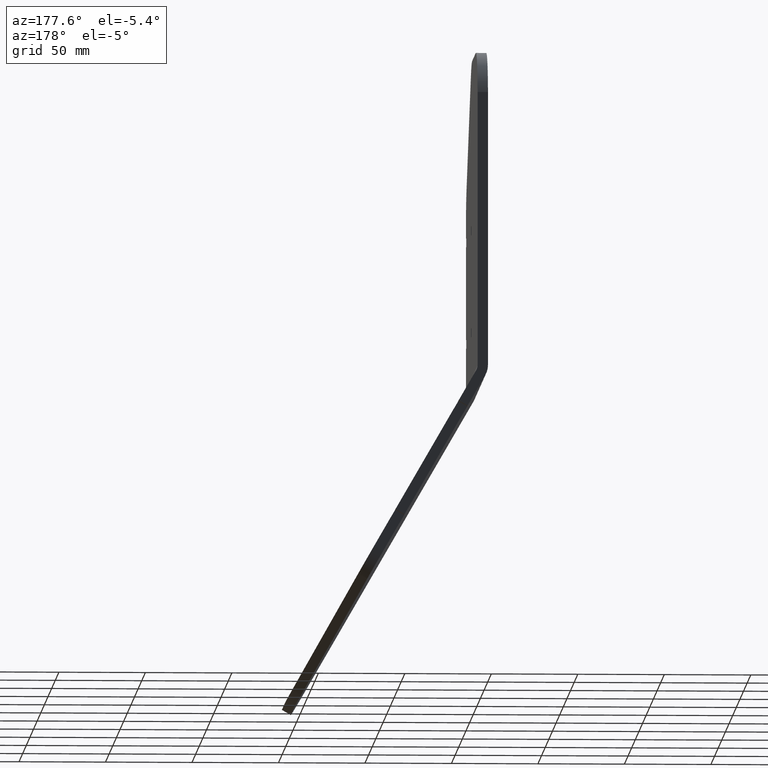
[diagram: clean part render]
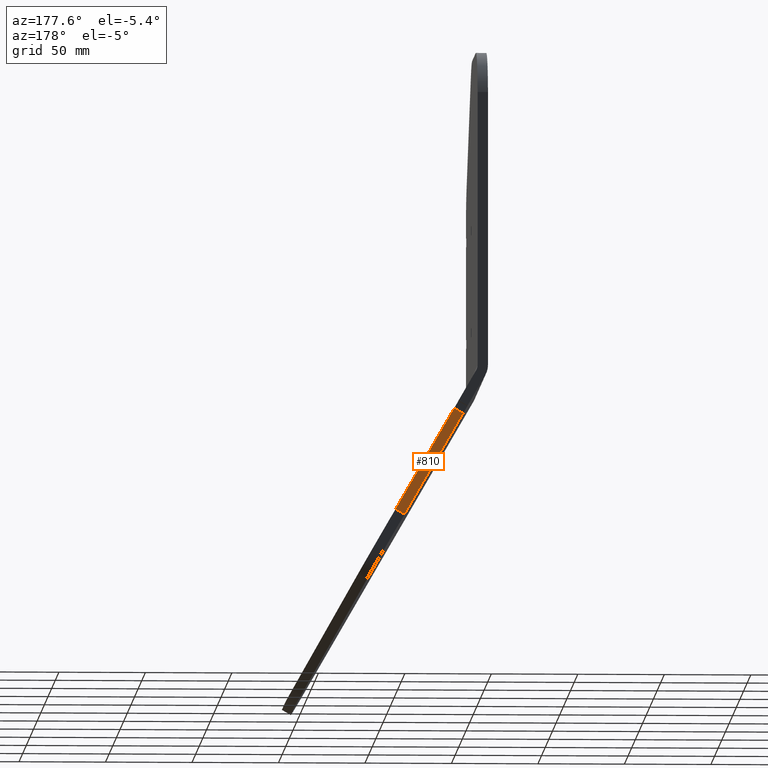
[diagram: same view with one face highlighted and labeled with its STEP entity id]
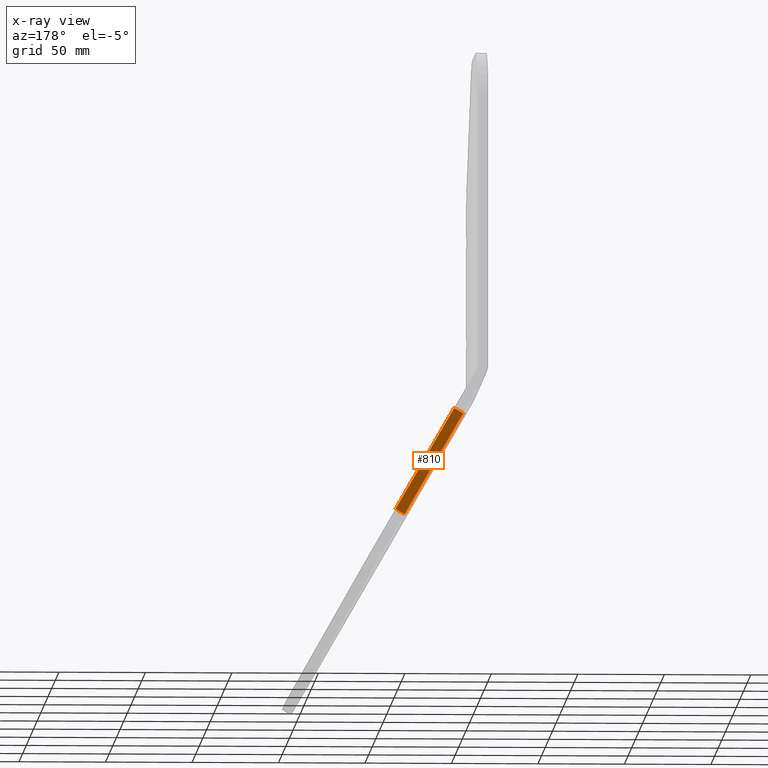
[diagram: x-ray of the same camera — body ghosted, the highlighted face saturated]
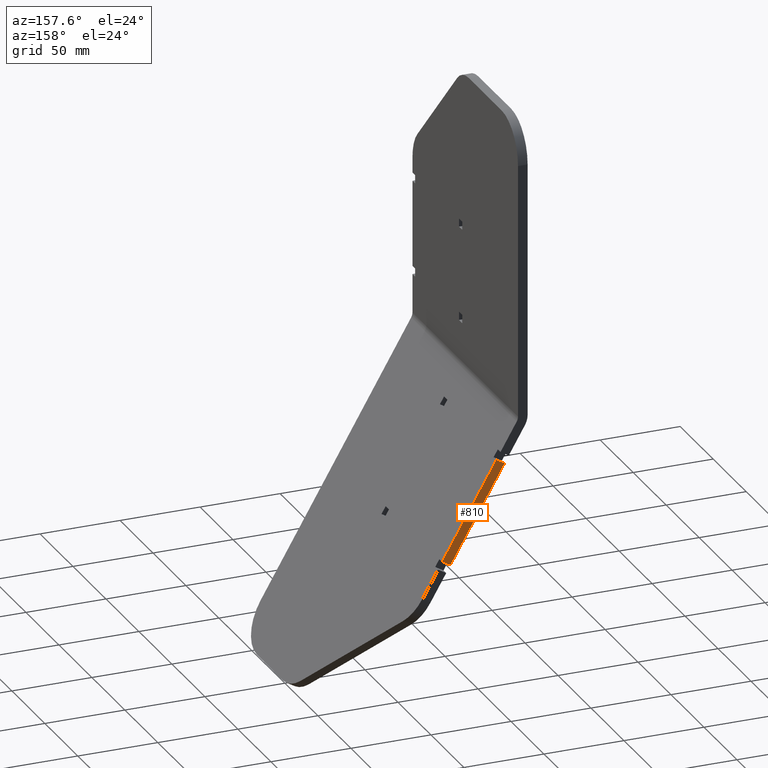
[diagram: same view with one face highlighted and labeled with its STEP entity id]
A machine part, auxiliary view. The second image highlights one B-rep face of the part: STEP entity #810.
The next image is the same camera in x-ray: the body ghosted, the highlighted face saturated — about 0% of this face is hidden behind the body in this view.
A second angle (auxiliary view) of the same face is appended — the face is thin or edge-on in the first view.
In plain terms, the highlighted planar face has unit normal (0, 1, 0).
Its self-contained STEP definition (entity closure, byte-faithful):
#47 = CARTESIAN_POINT ( 'NONE',  ( -829.5299461620750208, -1089.305262667903889, -930.2627944162877611 ) ) ;
#58 = ORIENTED_EDGE ( 'NONE', *, *, #1444, .T. ) ;
#103 = EDGE_CURVE ( 'NONE', #960, #702, #1434, .T. ) ;
#112 = CARTESIAN_POINT ( 'NONE',  ( -952.5500000000000682, -1089.305262667903889, -717.1858108191424890 ) ) ;
#143 = LINE ( 'NONE', #1535, #537 ) ;
#194 = DIRECTION ( 'NONE',  ( 0.000000000000000000, 1.000000000000000000, 0.000000000000000000 ) ) ;
#274 = VECTOR ( 'NONE', #1148, 1000.000000000000000 ) ;
#290 = ORIENTED_EDGE ( 'NONE', *, *, #404, .F. ) ;
#303 = PLANE ( 'NONE',  #1343 ) ;
#347 = CARTESIAN_POINT ( 'NONE',  ( -986.4499999999999318, -1089.305262667903889, -658.4692884425578541 ) ) ;
#404 = EDGE_CURVE ( 'NONE', #1566, #960, #143, .T. ) ;
#434 = CARTESIAN_POINT ( 'NONE',  ( -991.6461524227065638, -1089.305262667903889, -661.4692884425578541 ) ) ;
#456 = LINE ( 'NONE', #719, #274 ) ;
#537 = VECTOR ( 'NONE', #699, 1000.000000000000000 ) ;
#558 = CARTESIAN_POINT ( 'NONE',  ( -957.7461524227068139, -1089.305262667903889, -720.1858108191424890 ) ) ;
#585 = DIRECTION ( 'NONE',  ( -0.4999999999999995559, 0.000000000000000000, 0.8660254037844389297 ) ) ;
#652 = VECTOR ( 'NONE', #585, 1000.000000000000000 ) ;
#699 = DIRECTION ( 'NONE',  ( 0.8660254037844389297, -0.000000000000000000, 0.4999999999999995559 ) ) ;
#702 = VERTEX_POINT ( 'NONE', #347 ) ;
#719 = CARTESIAN_POINT ( 'NONE',  ( -986.4499999999999318, -1089.305262667903889, -658.4692884425578541 ) ) ;
#810 = ADVANCED_FACE ( 'NONE', ( #1543 ), #303, .T. ) ;
#905 = DIRECTION ( 'NONE',  ( -0.4999999999999995559, -0.000000000000000000, 0.8660254037844389297 ) ) ;
#960 = VERTEX_POINT ( 'NONE', #112 ) ;
#1001 = CARTESIAN_POINT ( 'NONE',  ( -829.5299461620750208, -1089.305262667903889, -930.2627944162877611 ) ) ;
#1060 = CARTESIAN_POINT ( 'NONE',  ( -834.7260985847816528, -1089.305262667903889, -933.2627944162877611 ) ) ;
#1148 = DIRECTION ( 'NONE',  ( 0.8660254037844389297, -0.000000000000000000, 0.4999999999999995559 ) ) ;
#1170 = DIRECTION ( 'NONE',  ( -0.4999999999999995559, 0.000000000000000000, 0.8660254037844389297 ) ) ;
#1175 = VECTOR ( 'NONE', #905, 1000.000000000000000 ) ;
#1306 = EDGE_CURVE ( 'NONE', #1777, #702, #456, .T. ) ;
#1343 = AXIS2_PLACEMENT_3D ( 'NONE', #1001, #194, #1170 ) ;
#1393 = ORIENTED_EDGE ( 'NONE', *, *, #103, .F. ) ;
#1434 = LINE ( 'NONE', #47, #652 ) ;
#1444 = EDGE_CURVE ( 'NONE', #1566, #1777, #1726, .T. ) ;
#1535 = CARTESIAN_POINT ( 'NONE',  ( -952.5500000000000682, -1089.305262667903889, -717.1858108191424890 ) ) ;
#1543 = FACE_OUTER_BOUND ( 'NONE', #1703, .T. ) ;
#1566 = VERTEX_POINT ( 'NONE', #558 ) ;
#1589 = ORIENTED_EDGE ( 'NONE', *, *, #1306, .T. ) ;
#1703 = EDGE_LOOP ( 'NONE', ( #290, #58, #1589, #1393 ) ) ;
#1726 = LINE ( 'NONE', #1060, #1175 ) ;
#1777 = VERTEX_POINT ( 'NONE', #434 ) ;